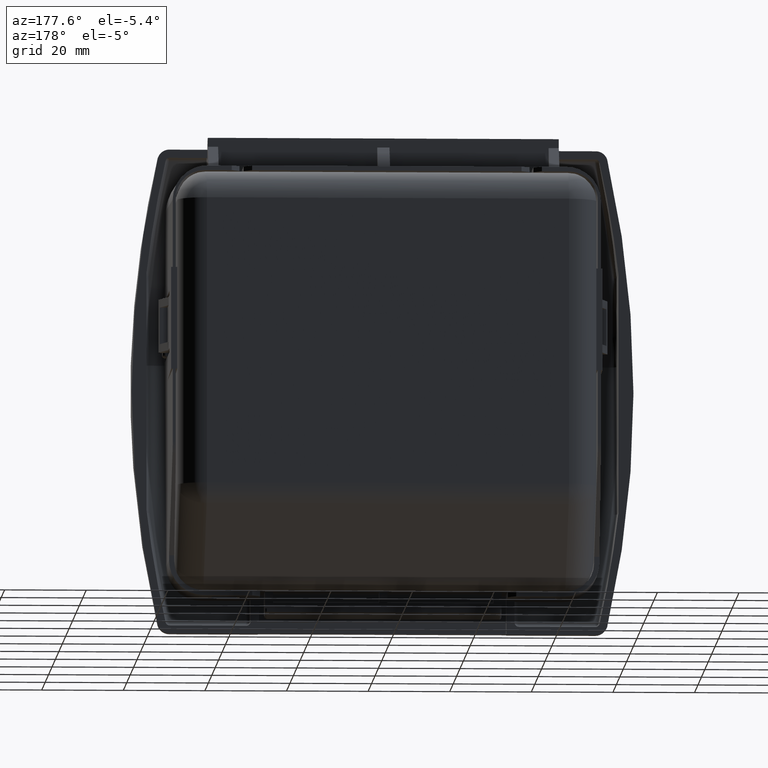
[diagram: clean part render]
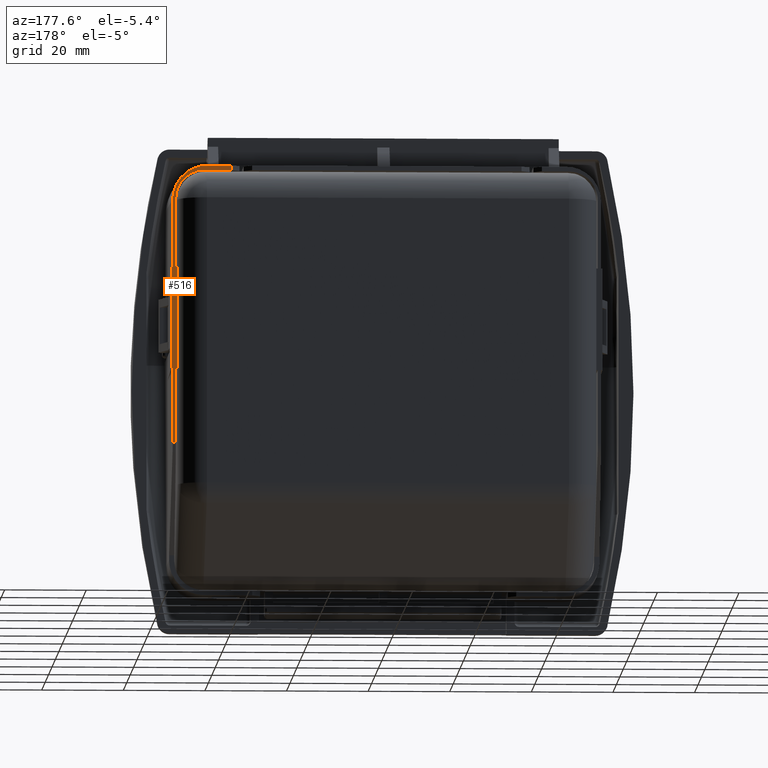
[diagram: same view with one face highlighted and labeled with its STEP entity id]
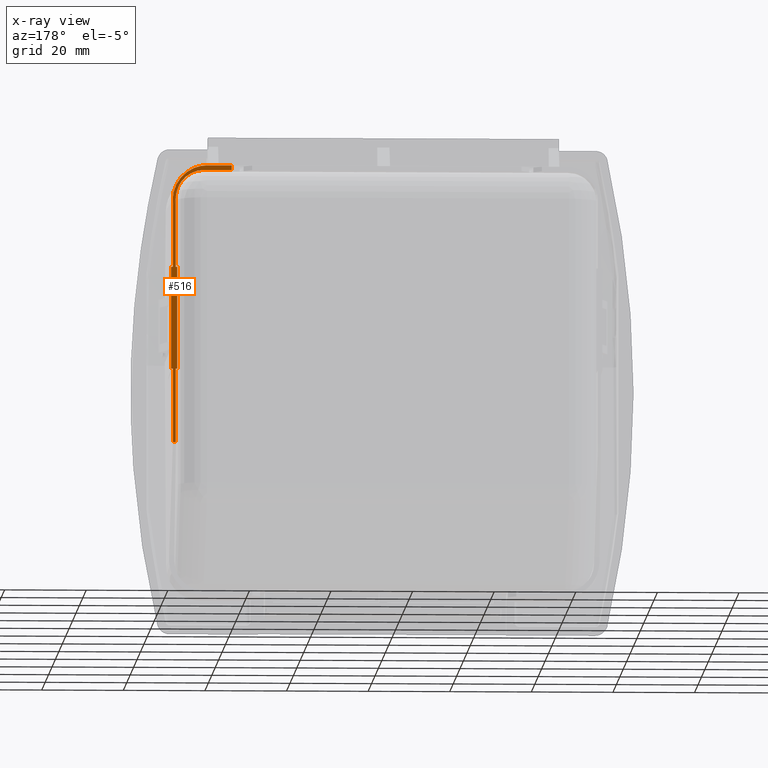
[diagram: x-ray of the same camera — body ghosted, the highlighted face saturated]
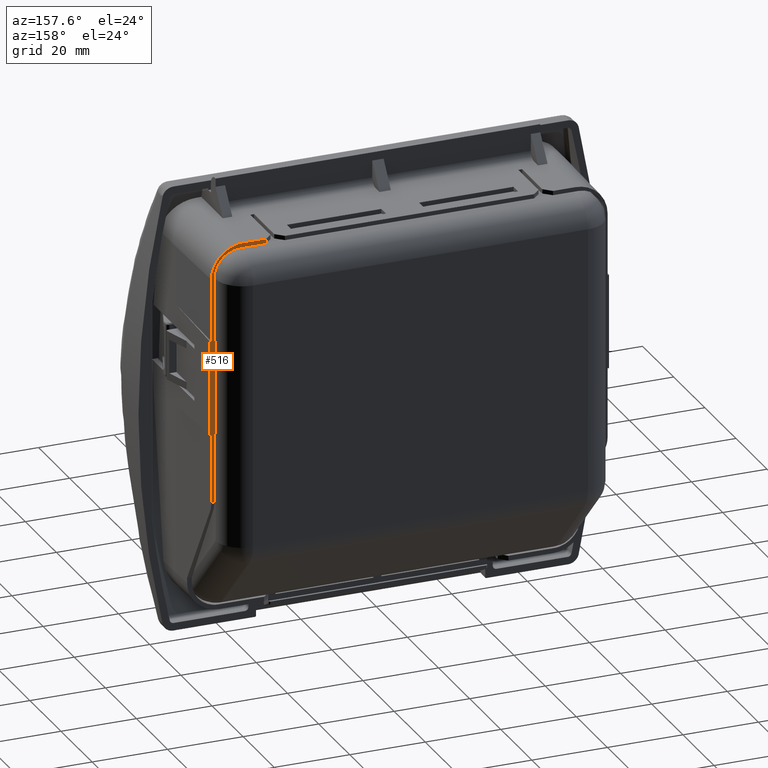
[diagram: same view with one face highlighted and labeled with its STEP entity id]
A machine part, auxiliary view. The second image highlights one B-rep face of the part: STEP entity #516.
The next image is the same camera in x-ray: the body ghosted, the highlighted face saturated — about 0% of this face is hidden behind the body in this view.
A second angle (auxiliary view) of the same face is appended — the face is thin or edge-on in the first view.
In plain terms, the highlighted planar face has unit normal (0, -1, 0).
Its self-contained STEP definition (entity closure, byte-faithful):
#516=ADVANCED_FACE('',(#4536),#4535,.F.);
#4535=PLANE('',#10649);
#4536=FACE_OUTER_BOUND('',#10650,.T.);
#10646=CARTESIAN_POINT('',(-1.44165344491E+002,2.50000000000E+001,6.01115080170E+001));
#10647=DIRECTION('',(7.13878218373E-012,-1.00000000000E+000,0.00000000000E+000));
#10648=DIRECTION('',(-1.00000000000E+000,-7.13878218373E-012,0.00000000000E+000));
#10649=AXIS2_PLACEMENT_3D('',#10646,#10647,#10648);
#10650=EDGE_LOOP('',(#16838,#16839,#16840,#16841,#16842,#16843,#16844,#16845,#16846,#16847,#16848,#16849,#16850,#16851,#16852,#16853));
#16838=ORIENTED_EDGE('',*,*,#19684,.F.);
#16839=ORIENTED_EDGE('',*,*,#19651,.T.);
#16840=ORIENTED_EDGE('',*,*,#19685,.T.);
#16841=ORIENTED_EDGE('',*,*,#19494,.F.);
#16842=ORIENTED_EDGE('',*,*,#19686,.F.);
#16843=ORIENTED_EDGE('',*,*,#19687,.F.);
#16844=ORIENTED_EDGE('',*,*,#19688,.T.);
#16845=ORIENTED_EDGE('',*,*,#19644,.T.);
#16846=ORIENTED_EDGE('',*,*,#19689,.F.);
#16847=ORIENTED_EDGE('',*,*,#19646,.F.);
#16848=ORIENTED_EDGE('',*,*,#19683,.T.);
#16849=ORIENTED_EDGE('',*,*,#19690,.F.);
#16850=ORIENTED_EDGE('',*,*,#19308,.F.);
#16851=ORIENTED_EDGE('',*,*,#19691,.F.);
#16852=ORIENTED_EDGE('',*,*,#19692,.F.);
#16853=ORIENTED_EDGE('',*,*,#19479,.F.);
#19308=EDGE_CURVE('',#25025,#25032,#25033,.T.);
#19479=EDGE_CURVE('',#26167,#26174,#26175,.T.);
#19494=EDGE_CURVE('',#26269,#26276,#26277,.T.);
#19644=EDGE_CURVE('',#27270,#27262,#27271,.T.);
#19646=EDGE_CURVE('',#27283,#27284,#27285,.T.);
#19651=EDGE_CURVE('',#27304,#27312,#27319,.T.);
#19683=EDGE_CURVE('',#27283,#27526,#27533,.T.);
#19684=EDGE_CURVE('',#27304,#26167,#27539,.T.);
#19685=EDGE_CURVE('',#27312,#26276,#27545,.T.);
#19686=EDGE_CURVE('',#27551,#26269,#27552,.T.);
#19687=EDGE_CURVE('',#27558,#27551,#27559,.T.);
#19688=EDGE_CURVE('',#27558,#27270,#27565,.T.);
#19689=EDGE_CURVE('',#27284,#27262,#27571,.T.);
#19690=EDGE_CURVE('',#25032,#27526,#27577,.T.);
#19691=EDGE_CURVE('',#27583,#25025,#27584,.T.);
#19692=EDGE_CURVE('',#26174,#27583,#27590,.T.);
#25025=VERTEX_POINT('',#34978);
#25032=VERTEX_POINT('',#34982);
#25033=LINE('',#34983,#34984);
#26167=VERTEX_POINT('',#35824);
#26174=VERTEX_POINT('',#35828);
#26175=(BOUNDED_CURVE() B_SPLINE_CURVE(2,(#35829,#35830,#35831),.UNSPECIFIED.,.F.,.F.) B_SPLINE_CURVE_WITH_KNOTS((3,3),(-3.14159265359E+000,-1.57079632679E+000),.UNSPECIFIED.) CURVE() GEOMETRIC_REPRESENTATION_ITEM() RATIONAL_B_SPLINE_CURVE((1.00000000000E+000,7.07106781187E-001,1.00000000000E+000)) REPRESENTATION_ITEM('') );
#26269=VERTEX_POINT('',#35925);
#26276=VERTEX_POINT('',#35929);
#26277=LINE('',#35930,#35931);
#27262=VERTEX_POINT('',#36599);
#27270=VERTEX_POINT('',#36604);
#27271=LINE('',#36605,#36606);
#27283=VERTEX_POINT('',#36611);
#27284=VERTEX_POINT('',#36612);
#27285=LINE('',#36613,#36614);
#27304=VERTEX_POINT('',#36623);
#27312=VERTEX_POINT('',#36628);
#27319=LINE('',#36632,#36633);
#27526=VERTEX_POINT('',#36743);
#27533=LINE('',#36746,#36747);
#27539=LINE('',#36749,#36750);
#27545=LINE('',#36752,#36753);
#27551=VERTEX_POINT('',#36755);
#27552=LINE('',#36756,#36757);
#27558=VERTEX_POINT('',#36759);
#27559=LINE('',#36760,#36761);
#27565=LINE('',#36763,#36764);
#27571=LINE('',#36766,#36767);
#27577=(BOUNDED_CURVE() B_SPLINE_CURVE(2,(#36769,#36770,#36771),.UNSPECIFIED.,.F.,.F.) B_SPLINE_CURVE_WITH_KNOTS((3,3),(2.35634678323E+000,3.92683852353E+000),.UNSPECIFIED.) CURVE() GEOMETRIC_REPRESENTATION_ITEM() RATIONAL_B_SPLINE_CURVE((1.00000000000E+000,7.07214460574E-001,1.00000000000E+000)) REPRESENTATION_ITEM('') );
#27583=VERTEX_POINT('',#36772);
#27584=LINE('',#36773,#36774);
#27590=LINE('',#36776,#36777);
#34978=CARTESIAN_POINT('',(-1.60500344491E+002,2.50000000000E+001,5.21665563630E+001));
#34982=CARTESIAN_POINT('',(-1.53782721993E+002,2.50000000000E+001,5.21665563630E+001));
#34983=CARTESIAN_POINT('',(-1.60500344491E+002,2.50000000000E+001,5.21665563630E+001));
#34984=VECTOR('',#34985,6.71762249761E+000);
#34985=DIRECTION('',(1.00000000000E+000,0.00000000000E+000,0.00000000000E+000));
#35824=CARTESIAN_POINT('',(-1.46025628387E+002,2.50000000000E+001,4.47999999995E+001));
#35828=CARTESIAN_POINT('',(-1.54526923176E+002,2.50000000000E+001,5.32999999995E+001));
#35829=CARTESIAN_POINT('',(-1.46025628387E+002,2.50000000000E+001,4.47999999995E+001));
#35830=CARTESIAN_POINT('',(-1.46025628387E+002,2.50000000000E+001,5.32999999995E+001));
#35831=CARTESIAN_POINT('',(-1.54526923176E+002,2.50000000000E+001,5.32999999995E+001));
#35925=CARTESIAN_POINT('',(-1.46025628387E+002,2.50000000000E+001,3.29999999998E+000));
#35929=CARTESIAN_POINT('',(-1.45650344491E+002,2.50000000000E+001,3.29999999998E+000));
#35930=CARTESIAN_POINT('',(-1.46025628387E+002,2.50000000000E+001,3.29999999998E+000));
#35931=VECTOR('',#35932,3.75283896019E-001);
#35932=DIRECTION('',(1.00000000000E+000,0.00000000000E+000,0.00000000000E+000));
#36599=CARTESIAN_POINT('',(-1.47150344491E+002,2.50000000000E+001,3.30000000000E+000));
#36604=CARTESIAN_POINT('',(-1.46783788127E+002,2.50000000000E+001,3.30000000000E+000));
#36605=CARTESIAN_POINT('',(-1.46783788127E+002,2.50000000000E+001,3.30000000000E+000));
#36606=VECTOR('',#36607,3.66556363466E-001);
#36607=DIRECTION('',(-1.00000000000E+000,0.00000000000E+000,0.00000000000E+000));
#36611=CARTESIAN_POINT('',(-1.46783788127E+002,2.50000000000E+001,2.83000000001E+001));
#36612=CARTESIAN_POINT('',(-1.47150344491E+002,2.50000000000E+001,2.83000000001E+001));
#36613=CARTESIAN_POINT('',(-1.46783788127E+002,2.50000000000E+001,2.83000000001E+001));
#36614=VECTOR('',#36615,3.66556363465E-001);
#36615=DIRECTION('',(-1.00000000000E+000,0.00000000000E+000,0.00000000000E+000));
#36623=CARTESIAN_POINT('',(-1.46025628387E+002,2.50000000000E+001,2.83000000000E+001));
#36628=CARTESIAN_POINT('',(-1.45650344491E+002,2.50000000000E+001,2.83000000000E+001));
#36632=CARTESIAN_POINT('',(-1.46025628387E+002,2.50000000000E+001,2.83000000000E+001));
#36633=VECTOR('',#36634,3.75283896019E-001);
#36634=DIRECTION('',(1.00000000000E+000,0.00000000000E+000,0.00000000000E+000));
#36743=CARTESIAN_POINT('',(-1.46783788127E+002,2.50000000000E+001,4.51676224969E+001));
#36746=CARTESIAN_POINT('',(-1.46783788127E+002,2.50000000000E+001,2.83000000001E+001));
#36747=VECTOR('',#36748,1.68676224968E+001);
#36748=DIRECTION('',(0.00000000000E+000,0.00000000000E+000,1.00000000000E+000));
#36749=CARTESIAN_POINT('',(-1.46025628387E+002,2.50000000000E+001,2.83000000000E+001));
#36750=VECTOR('',#36751,1.64999999994E+001);
#36751=DIRECTION('',(0.00000000000E+000,0.00000000000E+000,1.00000000000E+000));
#36752=CARTESIAN_POINT('',(-1.45650344491E+002,2.50000000000E+001,2.83000000000E+001));
#36753=VECTOR('',#36754,2.50000000001E+001);
#36754=DIRECTION('',(0.00000000000E+000,0.00000000000E+000,-1.00000000000E+000));
#36755=CARTESIAN_POINT('',(-1.46025628387E+002,2.50000000000E+001,-1.48150801757E+001));
#36756=CARTESIAN_POINT('',(-1.46025628387E+002,2.50000000000E+001,-1.48150801757E+001));
#36757=VECTOR('',#36758,1.81150801757E+001);
#36758=DIRECTION('',(0.00000000000E+000,0.00000000000E+000,1.00000000000E+000));
#36759=CARTESIAN_POINT('',(-1.46783788127E+002,2.50000000000E+001,-1.48150801757E+001));
#36760=CARTESIAN_POINT('',(-1.46783788127E+002,2.50000000000E+001,-1.48150801757E+001));
#36761=VECTOR('',#36762,7.58159740100E-001);
#36762=DIRECTION('',(1.00000000000E+000,7.13673207192E-012,1.18976774331E-011));
#36763=CARTESIAN_POINT('',(-1.46783788127E+002,2.50000000000E+001,-1.48150801757E+001));
#36764=VECTOR('',#36765,1.81150801757E+001);
#36765=DIRECTION('',(0.00000000000E+000,0.00000000000E+000,1.00000000000E+000));
#36766=CARTESIAN_POINT('',(-1.47150344491E+002,2.50000000000E+001,2.83000000001E+001));
#36767=VECTOR('',#36768,2.50000000001E+001);
#36768=DIRECTION('',(0.00000000000E+000,0.00000000000E+000,-1.00000000000E+000));
#36769=CARTESIAN_POINT('',(-1.53782721993E+002,2.50000000000E+001,5.21665563630E+001));
#36770=CARTESIAN_POINT('',(-1.46783788127E+002,2.50000000000E+001,5.21665563630E+001));
#36771=CARTESIAN_POINT('',(-1.46783788127E+002,2.50000000000E+001,4.51676224969E+001));
#36772=CARTESIAN_POINT('',(-1.60500344491E+002,2.49999999999E+001,5.32999999995E+001));
#36773=CARTESIAN_POINT('',(-1.60500344491E+002,2.49999999999E+001,5.32999999995E+001));
#36774=VECTOR('',#36775,1.13344363651E+000);
#36775=DIRECTION('',(0.00000000000E+000,0.00000000000E+000,-1.00000000000E+000));
#36776=CARTESIAN_POINT('',(-1.54526923176E+002,2.50000000000E+001,5.32999999995E+001));
#36777=VECTOR('',#36778,5.97342131543E+000);
#36778=DIRECTION('',(-1.00000000000E+000,-7.13882715363E-012,0.00000000000E+000));